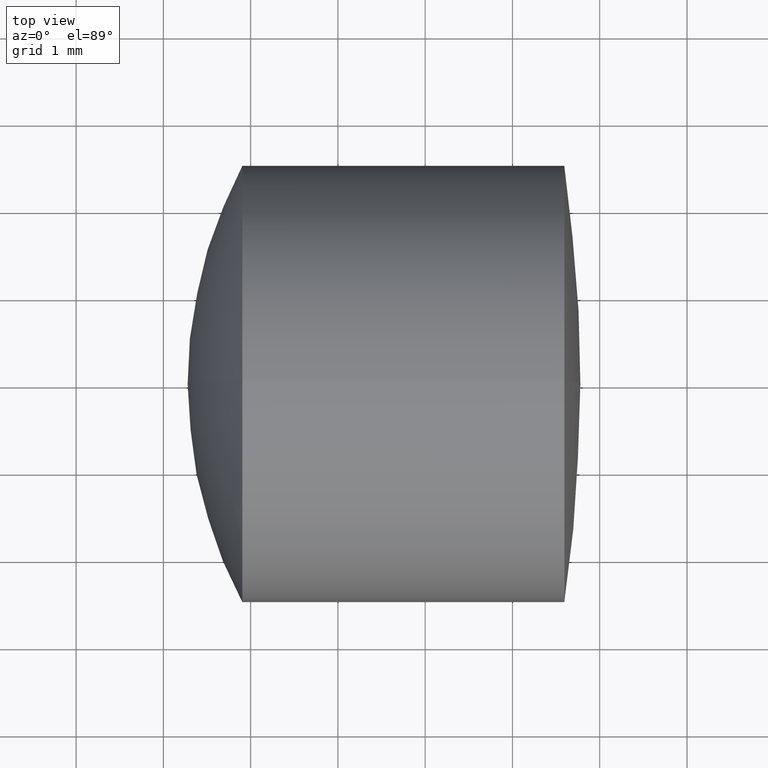
[diagram: clean part render]
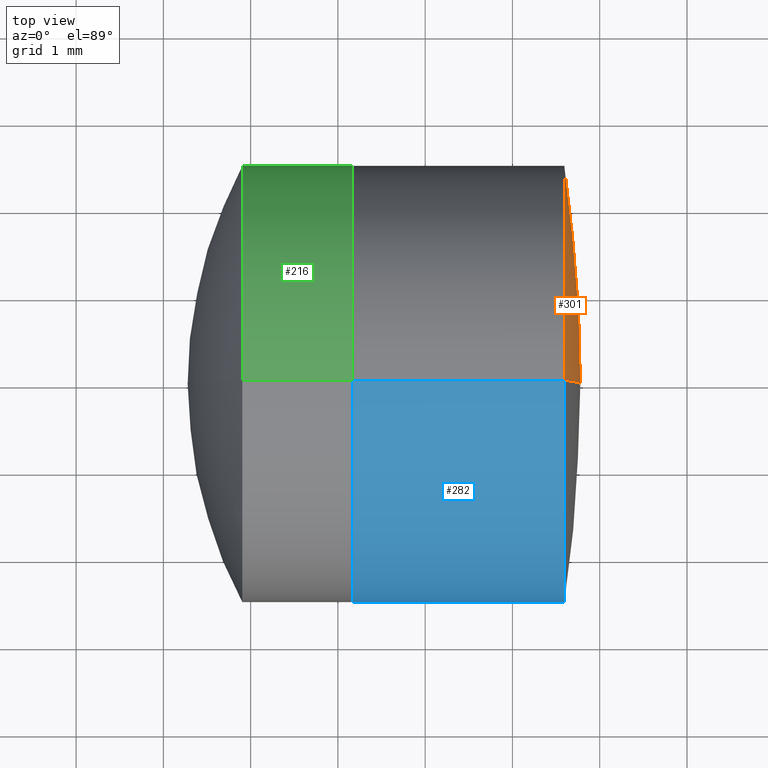
[diagram: same view with three faces highlighted in distinct colors, each labeled with its STEP entity id]
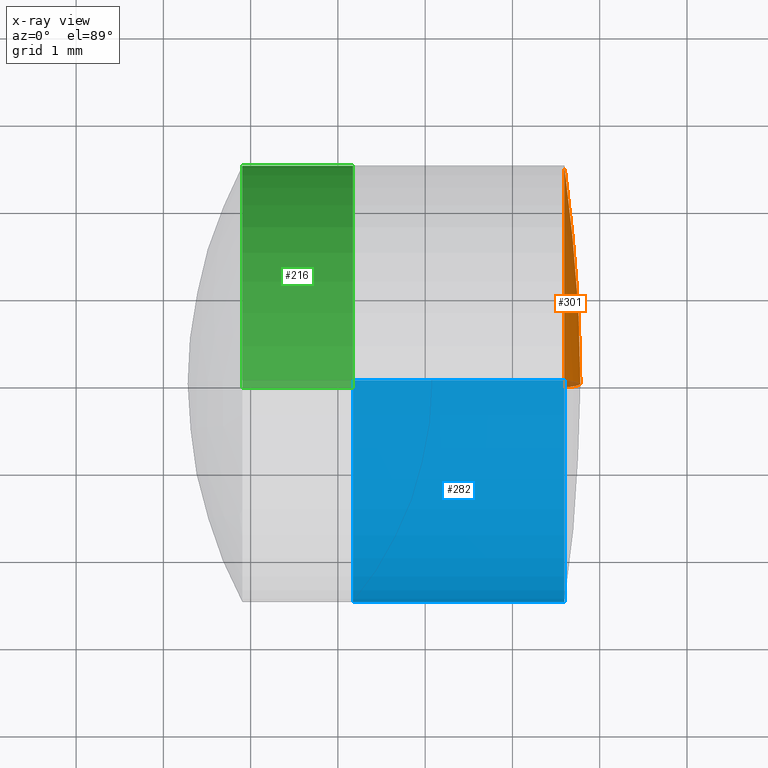
[diagram: x-ray of the same camera — body ghosted, the three highlighted faces saturated]
A machine part, top view with three faces highlighted in distinct colors.
The next image is the same camera in x-ray (body ghosted, the three faces saturated) — at least one of them is partly hidden behind the body in this view.
Their STEP definitions:

[orange] entity #301 — the highlighted spherical surface has radius 17.1 mm.
#19 = CARTESIAN_POINT ( 'NONE',  ( 5.778214333061161900, 0.0000000000000000000, 1.047073013270987200E-015 ) ) ;
#24 = SPHERICAL_SURFACE ( 'NONE', #176, 17.10000000000000500 ) ;
#33 = ORIENTED_EDGE ( 'NONE', *, *, #136, .F. ) ;
#34 = DIRECTION ( 'NONE',  ( 0.0000000000000000000, 0.0000000000000000000, 1.000000000000000000 ) ) ;
#35 = ORIENTED_EDGE ( 'NONE', *, *, #99, .T. ) ;
#47 = FACE_OUTER_BOUND ( 'NONE', #155, .T. ) ;
#61 = DIRECTION ( 'NONE',  ( 0.0000000000000000000, -1.224646799147353200E-016, 1.000000000000000000 ) ) ;
#84 = CARTESIAN_POINT ( 'NONE',  ( -11.32178566693884200, 0.0000000000000000000, 0.0000000000000000000 ) ) ;
#85 = CARTESIAN_POINT ( 'NONE',  ( 5.594478696093561100, 0.0000000000000000000, 2.499999999999997800 ) ) ;
#99 = EDGE_CURVE ( 'NONE', #302, #143, #297, .T. ) ;
#113 = CARTESIAN_POINT ( 'NONE',  ( 5.594478696093561100, 0.0000000000000000000, 0.0000000000000000000 ) ) ;
#119 = EDGE_CURVE ( 'NONE', #302, #294, #188, .T. ) ;
#121 = CARTESIAN_POINT ( 'NONE',  ( 5.594478696093561100, 3.061616997868381200E-016, -2.499999999999997800 ) ) ;
#126 = CIRCLE ( 'NONE', #187, 2.499999999999997800 ) ;
#136 = EDGE_CURVE ( 'NONE', #294, #143, #126, .T. ) ;
#143 = VERTEX_POINT ( 'NONE', #121 ) ;
#146 = DIRECTION ( 'NONE',  ( 0.0000000000000000000, 1.000000000000000000, 0.0000000000000000000 ) ) ;
#154 = CARTESIAN_POINT ( 'NONE',  ( -11.32178566693884200, 0.0000000000000000000, 0.0000000000000000000 ) ) ;
#155 = EDGE_LOOP ( 'NONE', ( #323, #35, #33 ) ) ;
#176 = AXIS2_PLACEMENT_3D ( 'NONE', #84, #146, #190 ) ;
#187 = AXIS2_PLACEMENT_3D ( 'NONE', #113, #194, #34 ) ;
#188 = CIRCLE ( 'NONE', #206, 17.10000000000000500 ) ;
#190 = DIRECTION ( 'NONE',  ( 0.0000000000000000000, 0.0000000000000000000, 1.000000000000000000 ) ) ;
#194 = DIRECTION ( 'NONE',  ( -1.000000000000000000, -0.0000000000000000000, -0.0000000000000000000 ) ) ;
#206 = AXIS2_PLACEMENT_3D ( 'NONE', #218, #249, #219 ) ;
#207 = DIRECTION ( 'NONE',  ( -0.0000000000000000000, 1.000000000000000000, 1.224646799147353200E-016 ) ) ;
#218 = CARTESIAN_POINT ( 'NONE',  ( -11.32178566693884200, 0.0000000000000000000, 0.0000000000000000000 ) ) ;
#219 = DIRECTION ( 'NONE',  ( 0.0000000000000000000, 0.0000000000000000000, -1.000000000000000000 ) ) ;
#249 = DIRECTION ( 'NONE',  ( 0.0000000000000000000, -1.000000000000000000, 0.0000000000000000000 ) ) ;
#261 = AXIS2_PLACEMENT_3D ( 'NONE', #154, #207, #61 ) ;
#294 = VERTEX_POINT ( 'NONE', #85 ) ;
#297 = CIRCLE ( 'NONE', #261, 17.10000000000000500 ) ;
#301 = ADVANCED_FACE ( 'NONE', ( #47 ), #24, .T. ) ;
#302 = VERTEX_POINT ( 'NONE', #19 ) ;
#323 = ORIENTED_EDGE ( 'NONE', *, *, #119, .F. ) ;

[blue] entity #282 — the highlighted cylindrical surface (partial cylindrical patch) has radius 2.5 mm, axis along (-1, -0, -0).
#17 = VERTEX_POINT ( 'NONE', #287 ) ;
#22 = CARTESIAN_POINT ( 'NONE',  ( -0.5519199926577972300, 3.061616997868381700E-016, -2.499999999999998700 ) ) ;
#29 = CARTESIAN_POINT ( 'NONE',  ( 5.594478696093561100, 0.0000000000000000000, 0.0000000000000000000 ) ) ;
#39 = CARTESIAN_POINT ( 'NONE',  ( 3.171540242480312500, 0.0000000000000000000, 0.0000000000000000000 ) ) ;
#42 = CIRCLE ( 'NONE', #310, 2.499999999999997800 ) ;
#56 = DIRECTION ( 'NONE',  ( -1.000000000000000000, -0.0000000000000000000, -0.0000000000000000000 ) ) ;
#66 = DIRECTION ( 'NONE',  ( 0.0000000000000000000, 0.0000000000000000000, 1.000000000000000000 ) ) ;
#70 = EDGE_CURVE ( 'NONE', #97, #17, #290, .T. ) ;
#72 = ORIENTED_EDGE ( 'NONE', *, *, #221, .T. ) ;
#79 = ORIENTED_EDGE ( 'NONE', *, *, #111, .T. ) ;
#80 = CARTESIAN_POINT ( 'NONE',  ( -0.5519199926577972300, 0.0000000000000000000, 2.499999999999998700 ) ) ;
#85 = CARTESIAN_POINT ( 'NONE',  ( 5.594478696093561100, 0.0000000000000000000, 2.499999999999997800 ) ) ;
#86 = DIRECTION ( 'NONE',  ( -1.000000000000000000, -0.0000000000000000000, -0.0000000000000000000 ) ) ;
#97 = VERTEX_POINT ( 'NONE', #268 ) ;
#98 = DIRECTION ( 'NONE',  ( 0.0000000000000000000, 0.0000000000000000000, 1.000000000000000000 ) ) ;
#111 = EDGE_CURVE ( 'NONE', #143, #294, #42, .T. ) ;
#120 = VECTOR ( 'NONE', #346, 1000.000000000000000 ) ;
#121 = CARTESIAN_POINT ( 'NONE',  ( 5.594478696093561100, 3.061616997868381200E-016, -2.499999999999997800 ) ) ;
#123 = CARTESIAN_POINT ( 'NONE',  ( -0.5519199926577972300, 0.0000000000000000000, 0.0000000000000000000 ) ) ;
#128 = AXIS2_PLACEMENT_3D ( 'NONE', #123, #86, #144 ) ;
#129 = VECTOR ( 'NONE', #138, 1000.000000000000000 ) ;
#132 = LINE ( 'NONE', #22, #120 ) ;
#138 = DIRECTION ( 'NONE',  ( -1.000000000000000000, -0.0000000000000000000, -0.0000000000000000000 ) ) ;
#143 = VERTEX_POINT ( 'NONE', #121 ) ;
#144 = DIRECTION ( 'NONE',  ( 0.0000000000000000000, 0.0000000000000000000, 1.000000000000000000 ) ) ;
#156 = ORIENTED_EDGE ( 'NONE', *, *, #70, .F. ) ;
#168 = EDGE_CURVE ( 'NONE', #143, #97, #132, .T. ) ;
#191 = LINE ( 'NONE', #80, #129 ) ;
#199 = AXIS2_PLACEMENT_3D ( 'NONE', #39, #56, #66 ) ;
#212 = ORIENTED_EDGE ( 'NONE', *, *, #168, .F. ) ;
#221 = EDGE_CURVE ( 'NONE', #294, #17, #191, .T. ) ;
#268 = CARTESIAN_POINT ( 'NONE',  ( 3.171540242480312500, 3.061616997868382200E-016, -2.499999999999999100 ) ) ;
#274 = CYLINDRICAL_SURFACE ( 'NONE', #128, 2.499999999999998700 ) ;
#282 = ADVANCED_FACE ( 'NONE', ( #321 ), #274, .T. ) ;
#287 = CARTESIAN_POINT ( 'NONE',  ( 3.171540242480312500, 0.0000000000000000000, 2.499999999999999100 ) ) ;
#289 = DIRECTION ( 'NONE',  ( -1.000000000000000000, -0.0000000000000000000, -0.0000000000000000000 ) ) ;
#290 = CIRCLE ( 'NONE', #199, 2.499999999999999100 ) ;
#294 = VERTEX_POINT ( 'NONE', #85 ) ;
#310 = AXIS2_PLACEMENT_3D ( 'NONE', #29, #289, #98 ) ;
#318 = EDGE_LOOP ( 'NONE', ( #212, #79, #72, #156 ) ) ;
#321 = FACE_OUTER_BOUND ( 'NONE', #318, .T. ) ;
#346 = DIRECTION ( 'NONE',  ( -1.000000000000000000, -0.0000000000000000000, -0.0000000000000000000 ) ) ;

[green] entity #216 — the highlighted cylindrical surface (partial cylindrical patch) has radius 2.5 mm, axis along (-1, -0, -0).
#2 = CARTESIAN_POINT ( 'NONE',  ( 1.904885754841989100, 0.0000000000000000000, 0.0000000000000000000 ) ) ;
#6 = DIRECTION ( 'NONE',  ( -1.000000000000000000, -0.0000000000000000000, -0.0000000000000000000 ) ) ;
#32 = LINE ( 'NONE', #178, #320 ) ;
#50 = ORIENTED_EDGE ( 'NONE', *, *, #153, .T. ) ;
#58 = CARTESIAN_POINT ( 'NONE',  ( -0.8160621761658039000, 0.0000000000000000000, 0.0000000000000000000 ) ) ;
#92 = AXIS2_PLACEMENT_3D ( 'NONE', #58, #242, #296 ) ;
#93 = DIRECTION ( 'NONE',  ( -1.000000000000000000, -0.0000000000000000000, -0.0000000000000000000 ) ) ;
#94 = EDGE_CURVE ( 'NONE', #131, #210, #32, .T. ) ;
#106 = ORIENTED_EDGE ( 'NONE', *, *, #94, .T. ) ;
#107 = AXIS2_PLACEMENT_3D ( 'NONE', #2, #277, #201 ) ;
#108 = CIRCLE ( 'NONE', #107, 2.500000000000000000 ) ;
#131 = VERTEX_POINT ( 'NONE', #326 ) ;
#153 = EDGE_CURVE ( 'NONE', #231, #131, #250, .T. ) ;
#178 = CARTESIAN_POINT ( 'NONE',  ( -0.8160621761658039000, 3.061616997868383600E-016, -2.500000000000000400 ) ) ;
#179 = ORIENTED_EDGE ( 'NONE', *, *, #237, .F. ) ;
#183 = FACE_OUTER_BOUND ( 'NONE', #263, .T. ) ;
#201 = DIRECTION ( 'NONE',  ( 0.0000000000000000000, 0.0000000000000000000, 1.000000000000000000 ) ) ;
#209 = DIRECTION ( 'NONE',  ( -1.000000000000000000, -0.0000000000000000000, -0.0000000000000000000 ) ) ;
#210 = VERTEX_POINT ( 'NONE', #260 ) ;
#214 = LINE ( 'NONE', #273, #241 ) ;
#216 = ADVANCED_FACE ( 'NONE', ( #183 ), #337, .T. ) ;
#230 = CARTESIAN_POINT ( 'NONE',  ( 3.171540242480312100, 0.0000000000000000000, 0.0000000000000000000 ) ) ;
#231 = VERTEX_POINT ( 'NONE', #300 ) ;
#237 = EDGE_CURVE ( 'NONE', #231, #245, #214, .T. ) ;
#240 = AXIS2_PLACEMENT_3D ( 'NONE', #230, #93, #246 ) ;
#241 = VECTOR ( 'NONE', #6, 1000.000000000000000 ) ;
#242 = DIRECTION ( 'NONE',  ( -1.000000000000000000, -0.0000000000000000000, -0.0000000000000000000 ) ) ;
#245 = VERTEX_POINT ( 'NONE', #344 ) ;
#246 = DIRECTION ( 'NONE',  ( 0.0000000000000000000, 0.0000000000000000000, 1.000000000000000000 ) ) ;
#250 = CIRCLE ( 'NONE', #240, 2.500000000000000400 ) ;
#260 = CARTESIAN_POINT ( 'NONE',  ( 1.904885754841988900, 3.061616997868383100E-016, -2.500000000000000000 ) ) ;
#263 = EDGE_LOOP ( 'NONE', ( #50, #106, #299, #179 ) ) ;
#273 = CARTESIAN_POINT ( 'NONE',  ( -0.8160621761658039000, 0.0000000000000000000, 2.500000000000000400 ) ) ;
#277 = DIRECTION ( 'NONE',  ( -1.000000000000000000, -0.0000000000000000000, -0.0000000000000000000 ) ) ;
#283 = EDGE_CURVE ( 'NONE', #245, #210, #108, .T. ) ;
#296 = DIRECTION ( 'NONE',  ( 0.0000000000000000000, 0.0000000000000000000, 1.000000000000000000 ) ) ;
#299 = ORIENTED_EDGE ( 'NONE', *, *, #283, .F. ) ;
#300 = CARTESIAN_POINT ( 'NONE',  ( 3.171540242480312100, 0.0000000000000000000, 2.500000000000000400 ) ) ;
#320 = VECTOR ( 'NONE', #209, 1000.000000000000000 ) ;
#326 = CARTESIAN_POINT ( 'NONE',  ( 3.171540242480312100, 3.061616997868383600E-016, -2.500000000000000400 ) ) ;
#337 = CYLINDRICAL_SURFACE ( 'NONE', #92, 2.500000000000000400 ) ;
#344 = CARTESIAN_POINT ( 'NONE',  ( 1.904885754841988900, 0.0000000000000000000, 2.500000000000000000 ) ) ;